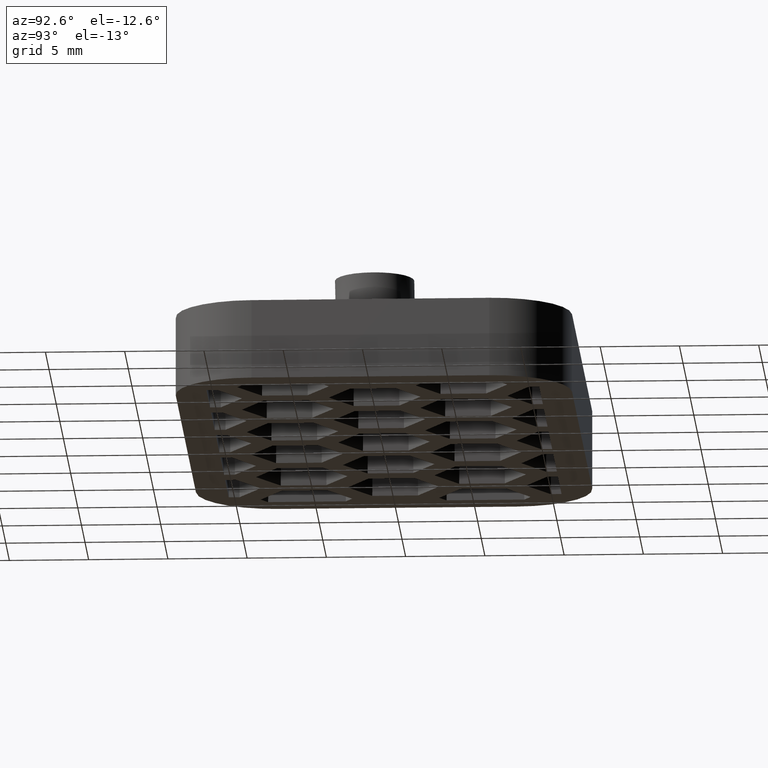
[diagram: clean part render]
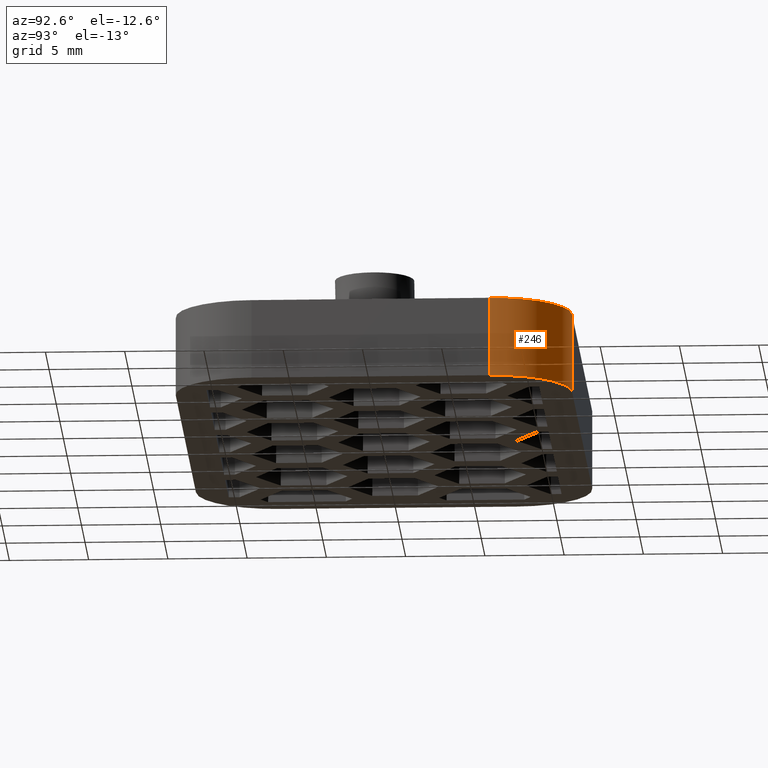
[diagram: same view with one face highlighted and labeled with its STEP entity id]
A machine part, auxiliary view. The second image highlights one B-rep face of the part: STEP entity #246.
In plain terms, the highlighted cylindrical surface (partial cylindrical patch) has radius 5 mm, axis along (-0, 0, 1).
Its self-contained STEP definition (entity closure, byte-faithful):
#246 = ADVANCED_FACE( '', ( #653 ), #654, .T. );
#653 = FACE_OUTER_BOUND( '', #1141, .T. );
#654 = CYLINDRICAL_SURFACE( '', #1142, 5.00000000000000 );
#1141 = EDGE_LOOP( '', ( #2534, #2535, #2536, #2537 ) );
#1142 = AXIS2_PLACEMENT_3D( '', #2538, #2539, #2540 );
#2534 = ORIENTED_EDGE( '', *, *, #3149, .T. );
#2535 = ORIENTED_EDGE( '', *, *, #3585, .F. );
#2536 = ORIENTED_EDGE( '', *, *, #3586, .F. );
#2537 = ORIENTED_EDGE( '', *, *, #3103, .T. );
#2538 = CARTESIAN_POINT( '', ( 14.0000000000000, 7.50000000000001, 62.9196969526088 ) );
#2539 = DIRECTION( '', ( -1.60751816480226E-016, 1.81794180051289E-016, 1.00000000000000 ) );
#2540 = DIRECTION( '', ( 1.00000000000000, 5.90573087550521E-032, 1.60751816480226E-016 ) );
#3103 = EDGE_CURVE( '', #3682, #3683, #3684, .T. );
#3149 = EDGE_CURVE( '', #3683, #3768, #3770, .T. );
#3585 = EDGE_CURVE( '', #4507, #3768, #4508, .T. );
#3586 = EDGE_CURVE( '', #3682, #4507, #4509, .T. );
#3682 = VERTEX_POINT( '', #4641 );
#3683 = VERTEX_POINT( '', #4642 );
#3684 = CIRCLE( '', #4643, 5.00000000000000 );
#3768 = VERTEX_POINT( '', #4764 );
#3770 = LINE( '', #4767, #4768 );
#4507 = VERTEX_POINT( '', #5936 );
#4508 = CIRCLE( '', #5937, 5.00000000000000 );
#4509 = LINE( '', #5938, #5939 );
#4641 = CARTESIAN_POINT( '', ( 14.0000000000000, 12.5000000000000, 4.99999999999999 ) );
#4642 = CARTESIAN_POINT( '', ( 19.0000000000000, 7.50000000000000, 4.99999999999999 ) );
#4643 = AXIS2_PLACEMENT_3D( '', #6119, #6120, #6121 );
#4764 = CARTESIAN_POINT( '', ( 19.0000000000000, 7.50000000000000, -4.59227382683391E-016 ) );
#4767 = CARTESIAN_POINT( '', ( 19.0000000000000, 7.50000000000001, 62.9196969526088 ) );
#4768 = VECTOR( '', #6181, 1000.00000000000 );
#5936 = CARTESIAN_POINT( '', ( 14.0000000000000, 12.5000000000000, -7.65378971138986E-016 ) );
#5937 = AXIS2_PLACEMENT_3D( '', #6625, #6626, #6627 );
#5938 = CARTESIAN_POINT( '', ( 14.0000000000000, 12.5000000000000, 62.9196969526088 ) );
#5939 = VECTOR( '', #6628, 1000.00000000000 );
#6119 = CARTESIAN_POINT( '', ( 14.0000000000000, 7.50000000000000, 4.99999999999999 ) );
#6120 = DIRECTION( '', ( 0.000000000000000, -6.12303176911189E-017, -1.00000000000000 ) );
#6121 = DIRECTION( '', ( 0.000000000000000, 1.00000000000000, -6.12303176911189E-017 ) );
#6181 = DIRECTION( '', ( 1.60751816480226E-016, -1.81794180051289E-016, -1.00000000000000 ) );
#6625 = CARTESIAN_POINT( '', ( 14.0000000000000, 7.50000000000000, -4.59227382683391E-016 ) );
#6626 = DIRECTION( '', ( 0.000000000000000, -6.12303176911189E-017, -1.00000000000000 ) );
#6627 = DIRECTION( '', ( 0.000000000000000, 1.00000000000000, -6.12303176911189E-017 ) );
#6628 = DIRECTION( '', ( 1.60751816480226E-016, -1.81794180051289E-016, -1.00000000000000 ) );